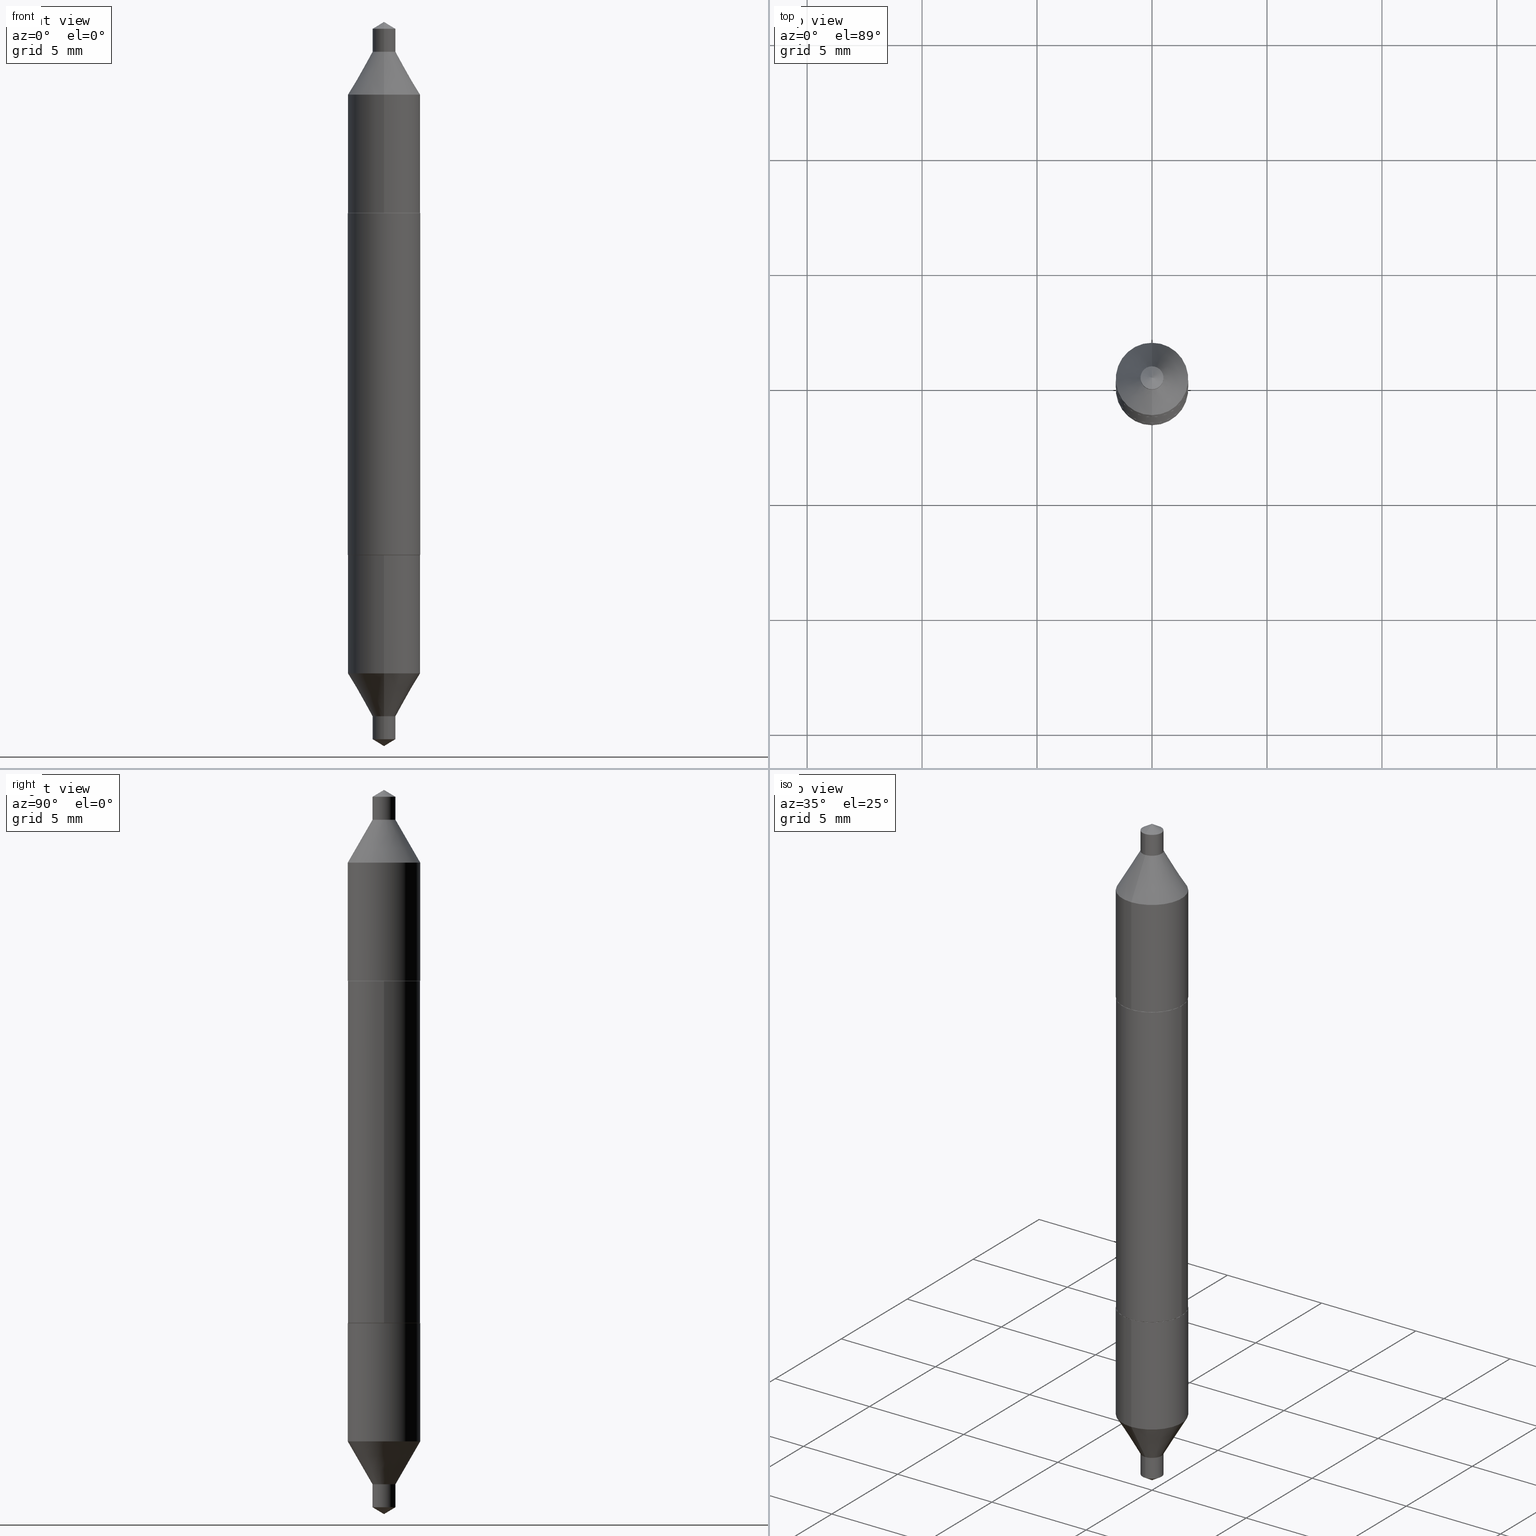
[diagram: canonical four-view strip — front | top / right | iso, engineering-drawing reading convention]
A machine part, canonical four-view strip (front | top / right | iso — engineering-drawing reading convention). The complete STEP part file that produces these views, byte-faithful:
ISO-10303-21;
HEADER;
FILE_DESCRIPTION (( 'STEP AP203' ),
    '1' );
FILE_NAME ('67009.STEP',
    '2024-04-19T15:17:42',
    ( '' ),
    ( '' ),
    'SwSTEP 2.0',
    'SolidWorks 2023',
    '' );
FILE_SCHEMA (( 'CONFIG_CONTROL_DESIGN' ));
ENDSEC;

DATA;
#1 = DIRECTION ( 'NONE',  ( 2.411471369612255613E-29, -3.540167603029431901E-15, -1.000000000000000000 ) ) ;
#2 = ORIENTED_EDGE ( 'NONE', *, *, #409, .F. ) ;
#3 = CARTESIAN_POINT ( 'NONE',  ( -7.165223602122447572E-30, 1.023004032281041323E-15, 0.2929999999999999272 ) ) ;
#4 = DIRECTION ( 'NONE',  ( 2.438088387897960049E-29, -3.491481338843145188E-15, -1.000000000000000000 ) ) ;
#5 = ORIENTED_EDGE ( 'NONE', *, *, #409, .T. ) ;
#6 = LINE ( 'NONE', #123, #179 ) ;
#7 = CONICAL_SURFACE ( 'NONE', #693, 65.52281426576880108, 1.029744258676656976 ) ;
#8 = CARTESIAN_POINT ( 'NONE',  ( -4.329436860165363363E-16, -0.06200000000000172734, -0.4955342508398351553 ) ) ;
#9 = CIRCLE ( 'NONE', #315, 0.06200000000000004119 ) ;
#10 = FACE_OUTER_BOUND ( 'NONE', #15, .T. ) ;
#11 = FACE_OUTER_BOUND ( 'NONE', #480, .T. ) ;
#12 = CARTESIAN_POINT ( 'NONE',  ( 0.06150000000000003381, -1.452456236958746978E-15, -0.2929999999999999272 ) ) ;
#13 = DIRECTION ( 'NONE',  ( -2.445468806185136597E-29, 3.491481338843145583E-15, 1.000000000000000000 ) ) ;
#14 = CARTESIAN_POINT ( 'NONE',  ( -1.375643647504331674E-16, -0.01969999999999798648, 0.5687999999999999723 ) ) ;
#15 = EDGE_LOOP ( 'NONE', ( #117, #397, #329, #143 ) ) ;
#16 = ORIENTED_EDGE ( 'NONE', *, *, #153, .F. ) ;
#17 = APPROVAL ( #300, 'UNSPECIFIED' ) ;
#18 = DATE_AND_TIME ( #82, #52 ) ;
#19 = EDGE_LOOP ( 'NONE', ( #317, #536, #641, #488 ) ) ;
#20 = CLOSED_SHELL ( 'NONE', ( #243, #601, #106, #124, #305, #469, #528, #626, #197 ) ) ;
#21 = CLOSED_SHELL ( 'NONE', ( #446, #633, #479, #393, #571, #647, #519, #130, #486 ) ) ;
#22 = AXIS2_PLACEMENT_3D ( 'NONE', #653, #121, #334 ) ;
#23 = LINE ( 'NONE', #347, #125 ) ;
#24 = VECTOR ( 'NONE', #96, 39.37007874015748854 ) ;
#25 = PERSON_AND_ORGANIZATION ( #353, #524 ) ;
#26 = DIRECTION ( 'NONE',  ( -0.7071067811865535679, 2.382254525458770323E-15, -0.7071067811865414665 ) ) ;
#27 = EDGE_CURVE ( 'NONE', #694, #193, #415, .T. ) ;
#28 = CARTESIAN_POINT ( 'NONE',  ( 4.253508758618278662E-16, 0.06200000000000175510, 0.4955342508398351553 ) ) ;
#29 = DIRECTION ( 'NONE',  ( 1.000000000000000000, 0.000000000000000000, 0.000000000000000000 ) ) ;
#30 = EDGE_CURVE ( 'NONE', #566, #97, #23, .T. ) ;
#31 = DIRECTION ( 'NONE',  ( -2.445468806185136597E-29, 3.491481338843145583E-15, 1.000000000000000000 ) ) ;
#32 = CONICAL_SURFACE ( 'NONE', #292, 0.06150000000000003381, 0.7853981633974568277 ) ;
#33 = AXIS2_PLACEMENT_3D ( 'NONE', #492, #222, #662 ) ;
#34 = DIRECTION ( 'NONE',  ( 0.000000000000000000, 0.000000000000000000, 1.000000000000000000 ) ) ;
#35 = CARTESIAN_POINT ( 'NONE',  ( -1.375643647504341041E-16, -0.01969999999999784770, 0.6081630458051571209 ) ) ;
#36 = DIRECTION ( 'NONE',  ( -2.445468806185136597E-29, 3.491481338843145583E-15, 1.000000000000000000 ) ) ;
#37 = EDGE_CURVE ( 'NONE', #193, #449, #288, .T. ) ;
#38 = DIRECTION ( 'NONE',  ( -6.982962677686268288E-15, -1.000000000000000000, 3.468864327941575282E-15 ) ) ;
#39 = AXIS2_PLACEMENT_3D ( 'NONE', #514, #199, #88 ) ;
#40 = ORIENTED_EDGE ( 'NONE', *, *, #325, .T. ) ;
#41 = DIRECTION ( 'NONE',  ( -2.479466242758017580E-29, 3.442795074656859264E-15, 1.000000000000000000 ) ) ;
#42 = EDGE_LOOP ( 'NONE', ( #184, #45, #201, #346 ) ) ;
#43 = DIRECTION ( 'NONE',  ( -6.982962677686268288E-15, -1.000000000000000000, 3.468864327941575282E-15 ) ) ;
#44 = ORIENTED_EDGE ( 'NONE', *, *, #153, .T. ) ;
#45 = ORIENTED_EDGE ( 'NONE', *, *, #211, .F. ) ;
#46 = CARTESIAN_POINT ( 'NONE',  ( 7.165223602122447572E-30, -1.023004032281041323E-15, -0.2929999999999999272 ) ) ;
#47 = EDGE_CURVE ( 'NONE', #637, #341, #437, .T. ) ;
#48 = PRODUCT_DEFINITION_SHAPE ( 'NONE', 'NONE',  #147 ) ;
#49 = CIRCLE ( 'NONE', #548, 0.06150000000000003381 ) ;
#50 = AXIS2_PLACEMENT_3D ( 'NONE', #285, #13, #175 ) ;
#51 = CARTESIAN_POINT ( 'NONE',  ( 1.400359149964906176E-29, -1.972526913871403021E-15, -0.5687999999999999723 ) ) ;
#52 = LOCAL_TIME ( 11, 17, 42.00000000000000000, #454 ) ;
#53 = FACE_OUTER_BOUND ( 'NONE', #84, .T. ) ;
#54 = EDGE_LOOP ( 'NONE', ( #527, #549, #235, #499 ) ) ;
#55 = EDGE_CURVE ( 'NONE', #289, #100, #304, .T. ) ;
#56 = FACE_OUTER_BOUND ( 'NONE', #441, .T. ) ;
#57 = LINE ( 'NONE', #387, #534 ) ;
#58 = CYLINDRICAL_SURFACE ( 'NONE', #191, 0.06200000000000001343 ) ;
#59 = AXIS2_PLACEMENT_3D ( 'NONE', #141, #467, #360 ) ;
#60 = FACE_OUTER_BOUND ( 'NONE', #142, .T. ) ;
#61 = CONICAL_SURFACE ( 'NONE', #50, 0.06150000000000003381, 0.7853981633974568277 ) ;
#62 = CYLINDRICAL_SURFACE ( 'NONE', #630, 0.06200000000000001343 ) ;
#63 = LINE ( 'NONE', #14, #238 ) ;
#64 = CARTESIAN_POINT ( 'NONE',  ( -1.381606163951305151E-29, 1.999382257196558882E-15, 0.5687999999999999723 ) ) ;
#65 = DIRECTION ( 'NONE',  ( -6.982962677686265133E-15, -1.000000000000000000, 3.466812174700844249E-15 ) ) ;
#66 = CARTESIAN_POINT ( 'NONE',  ( 7.165223602122447572E-30, -1.023004032281041323E-15, -0.2929999999999999272 ) ) ;
#67 = DIRECTION ( 'NONE',  ( -2.438088387897960049E-29, 3.491481338843145188E-15, 1.000000000000000000 ) ) ;
#68 = CARTESIAN_POINT ( 'NONE',  ( -1.204927907478374845E-29, 1.740009225608063244E-15, 0.4955342508398353774 ) ) ;
#69 = CARTESIAN_POINT ( 'NONE',  ( 9.343474420319446773E-28, -1.371960384461516369E-13, -38.75007874015748399 ) ) ;
#70 = ADVANCED_FACE ( 'NONE', ( #234 ), #259, .T. ) ;
#71 = DESIGN_CONTEXT ( 'detailed design', #231, 'design' ) ;
#72 = LINE ( 'NONE', #443, #452 ) ;
#73 = LENGTH_MEASURE_WITH_UNIT ( LENGTH_MEASURE( 0.02539999999999999897 ), #448 );
#74 = EDGE_CURVE ( 'NONE', #162, #364, #613, .T. ) ;
#75 = ORIENTED_EDGE ( 'NONE', *, *, #363, .T. ) ;
#76 = CC_DESIGN_PERSON_AND_ORGANIZATION_ASSIGNMENT ( #294, #507, ( #665 ) ) ;
#77 = CLOSED_SHELL ( 'NONE', ( #70, #270, #699, #86, #394, #228, #583, #177 ) ) ;
#78 = CARTESIAN_POINT ( 'NONE',  ( -7.165223602122447572E-30, 1.023004032281041323E-15, 0.2929999999999999272 ) ) ;
#79 = AXIS2_PLACEMENT_3D ( 'NONE', #531, #690, #419 ) ;
#80 = DIRECTION ( 'NONE',  ( -0.7071067811865535679, 7.493145998870376248E-15, 0.7071067811865414665 ) ) ;
#81 = CC_DESIGN_PERSON_AND_ORGANIZATION_ASSIGNMENT ( #459, #137, ( #147 ) ) ;
#82 = CALENDAR_DATE ( 2024, 19, 4 ) ;
#83 = CARTESIAN_POINT ( 'NONE',  ( 7.165223602122447572E-30, -1.023004032281041323E-15, -0.2929999999999999272 ) ) ;
#84 = EDGE_LOOP ( 'NONE', ( #700, #102 ) ) ;
#85 = APPROVAL ( #666, 'UNSPECIFIED' ) ;
#86 = ADVANCED_FACE ( 'NONE', ( #539 ), #276, .T. ) ;
#87 = PERSON_AND_ORGANIZATION_ROLE ( 'creator' ) ;
#88 = DIRECTION ( 'NONE',  ( -6.982962677686265922E-15, -1.000000000000000000, 3.304654831045479413E-15 ) ) ;
#89 = ORIENTED_EDGE ( 'NONE', *, *, #605, .F. ) ;
#90 = FACE_OUTER_BOUND ( 'NONE', #668, .T. ) ;
#91 = ORIENTED_EDGE ( 'NONE', *, *, #425, .F. ) ;
#92 = AXIS2_PLACEMENT_3D ( 'NONE', #350, #36, #245 ) ;
#93 = APPROVAL_PERSON_ORGANIZATION ( #94, #532, #569 ) ;
#94 = PERSON_AND_ORGANIZATION ( #353, #524 ) ;
#95 = DIRECTION ( 'NONE',  ( -6.982962677686265133E-15, -1.000000000000000000, 3.466812174700844249E-15 ) ) ;
#96 = DIRECTION ( 'NONE',  ( 3.430248998885748032E-15, 0.4999999999999914513, -0.8660254037844434816 ) ) ;
#97 = VERTEX_POINT ( 'NONE', #379 ) ;
#98 = LINE ( 'NONE', #313, #262 ) ;
#99 = AXIS2_PLACEMENT_3D ( 'NONE', #518, #461, #192 ) ;
#100 = VERTEX_POINT ( 'NONE', #547 ) ;
#101 = AXIS2_PLACEMENT_3D ( 'NONE', #485, #41, #38 ) ;
#102 = ORIENTED_EDGE ( 'NONE', *, *, #27, .T. ) ;
#103 = CARTESIAN_POINT ( 'NONE',  ( -9.608947338935145757E-28, 1.333943151537730596E-13, 38.75007874015748399 ) ) ;
#104 = ORIENTED_EDGE ( 'NONE', *, *, #545, .F. ) ;
#105 = ORIENTED_EDGE ( 'NONE', *, *, #373, .T. ) ;
#106 = ADVANCED_FACE ( 'NONE', ( #610 ), #7, .T. ) ;
#107 = FACE_OUTER_BOUND ( 'NONE', #54, .T. ) ;
#108 = ORIENTED_EDGE ( 'NONE', *, *, #284, .F. ) ;
#109 = CARTESIAN_POINT ( 'NONE',  ( 1.399769189447536068E-16, 0.01969999999999801424, -0.5687999999999999723 ) ) ;
#110 = AXIS2_PLACEMENT_3D ( 'NONE', #669, #291, #400 ) ;
#111 = VERTEX_POINT ( 'NONE', #564 ) ;
#112 = DIRECTION ( 'NONE',  ( -2.445468806185136597E-29, 3.491481338843145583E-15, 1.000000000000000000 ) ) ;
#113 = CIRCLE ( 'NONE', #504, 0.01969999999999998488 ) ;
#114 = AXIS2_PLACEMENT_3D ( 'NONE', #308, #354, #258 ) ;
#115 = VECTOR ( 'NONE', #340, 39.37007874015748143 ) ;
#116 = CARTESIAN_POINT ( 'NONE',  ( -7.165223602122447572E-30, 1.023004032281041323E-15, 0.2929999999999999272 ) ) ;
#117 = ORIENTED_EDGE ( 'NONE', *, *, #551, .F. ) ;
#118 = EDGE_CURVE ( 'NONE', #185, #423, #312, .T. ) ;
#119 = DIRECTION ( 'NONE',  ( 6.982962677686265922E-15, 1.000000000000000000, -3.442795074656859264E-15 ) ) ;
#120 = ORIENTED_EDGE ( 'NONE', *, *, #425, .T. ) ;
#121 = DIRECTION ( 'NONE',  ( -2.411471369612255613E-29, 3.540167603029431901E-15, 1.000000000000000000 ) ) ;
#122 = CARTESIAN_POINT ( 'NONE',  ( 4.405364961712740929E-16, 0.06199999999999896566, -0.2930000000000001492 ) ) ;
#123 = CARTESIAN_POINT ( 'NONE',  ( 1.517346572678262628E-29, -2.163063097100416632E-15, -0.6199999999999999956 ) ) ;
#124 = ADVANCED_FACE ( 'NONE', ( #352 ), #614, .T. ) ;
#125 = VECTOR ( 'NONE', #80, 39.37007874015748143 ) ;
#126 = DIRECTION ( 'NONE',  ( -6.982962677686265133E-15, -1.000000000000000000, 3.535573257325065938E-15 ) ) ;
#127 = CARTESIAN_POINT ( 'NONE',  ( 0.06200000000000001343, -4.329436860165486130E-16, 3.023229600993481018E-30 ) ) ;
#128 = AXIS2_PLACEMENT_3D ( 'NONE', #617, #34, #29 ) ;
#129 = CC_DESIGN_SECURITY_CLASSIFICATION ( #665, ( #252 ) ) ;
#130 = ADVANCED_FACE ( 'NONE', ( #552 ), #555, .T. ) ;
#131 = CARTESIAN_POINT ( 'NONE',  ( -7.165223602122447572E-30, 1.023004032281041323E-15, 0.2929999999999999272 ) ) ;
#132 = FACE_OUTER_BOUND ( 'NONE', #42, .T. ) ;
#133 = DIRECTION ( 'NONE',  ( 2.411471369612255613E-29, -3.540167603029431901E-15, -1.000000000000000000 ) ) ;
#134 = APPLICATION_PROTOCOL_DEFINITION ( 'international standard', 'config_control_design', 1994, #231 ) ;
#135 = CARTESIAN_POINT ( 'NONE',  ( 0.06150000000000003381, -1.452456236958746978E-15, -0.2929999999999999272 ) ) ;
#136 = VERTEX_POINT ( 'NONE', #12 ) ;
#137 = PERSON_AND_ORGANIZATION_ROLE ( 'creator' ) ;
#138 = CIRCLE ( 'NONE', #328, 0.01969999999999998141 ) ;
#139 = CARTESIAN_POINT ( 'NONE',  ( 1.497958493250930827E-29, -2.108045814092890790E-15, -0.6081630458051571209 ) ) ;
#140 =( NAMED_UNIT ( * ) PLANE_ANGLE_UNIT ( ) SI_UNIT ( $, .RADIAN. ) );
#141 = CARTESIAN_POINT ( 'NONE',  ( 7.165223602122447572E-30, -1.023004032281041323E-15, -0.2929999999999999272 ) ) ;
#142 = EDGE_LOOP ( 'NONE', ( #5, #189, #104, #108 ) ) ;
#143 = ORIENTED_EDGE ( 'NONE', *, *, #577, .F. ) ;
#144 = APPROVAL_ROLE ( '' ) ;
#145 = CARTESIAN_POINT ( 'NONE',  ( -7.165223602122447572E-30, 1.023004032281041323E-15, 0.2929999999999999272 ) ) ;
#146 = PERSON_AND_ORGANIZATION ( #353, #524 ) ;
#147 = PRODUCT_DEFINITION ( 'UNKNOWN', '', #252, #71 ) ;
#148 = DIRECTION ( 'NONE',  ( 2.411471369612255613E-29, -3.540167603029431901E-15, -1.000000000000000000 ) ) ;
#149 = AXIS2_PLACEMENT_3D ( 'NONE', #645, #587, #374 ) ;
#150 = CARTESIAN_POINT ( 'NONE',  ( -0.06200000000000001343, 4.405364961712622107E-16, -3.049739755958042274E-30 ) ) ;
#151 = CARTESIAN_POINT ( 'NONE',  ( 0.06150000000000003381, 5.935518276033357667E-16, 0.2929999999999999272 ) ) ;
#152 = FACE_OUTER_BOUND ( 'NONE', #157, .T. ) ;
#153 = EDGE_CURVE ( 'NONE', #100, #628, #72, .T. ) ;
#154 = ORIENTED_EDGE ( 'NONE', *, *, #323, .F. ) ;
#155 = DIRECTION ( 'NONE',  ( -5.985567269335927080E-15, -0.8571673007021154422, -0.5150380749100490485 ) ) ;
#156 = EDGE_CURVE ( 'NONE', #193, #694, #49, .T. ) ;
#157 = EDGE_LOOP ( 'NONE', ( #426, #604, #40, #163 ) ) ;
#158 = AXIS2_PLACEMENT_3D ( 'NONE', #538, #67, #496 ) ;
#159 = ORIENTED_EDGE ( 'NONE', *, *, #679, .F. ) ;
#160 = FACE_OUTER_BOUND ( 'NONE', #244, .T. ) ;
#161 = CARTESIAN_POINT ( 'NONE',  ( 1.351518105560852410E-16, 0.01970000000000198329, 0.5687999999999998613 ) ) ;
#162 = VERTEX_POINT ( 'NONE', #487 ) ;
#163 = ORIENTED_EDGE ( 'NONE', *, *, #380, .F. ) ;
#164 = EDGE_CURVE ( 'NONE', #162, #435, #6, .T. ) ;
#165 = PLANE ( 'NONE',  #158 ) ;
#166 = CONICAL_SURFACE ( 'NONE', #99, 0.06150000000000003381, 0.7853981633974568277 ) ;
#167 = ORIENTED_EDGE ( 'NONE', *, *, #692, .T. ) ;
#168 = VECTOR ( 'NONE', #582, 39.37007874015748143 ) ;
#169 = CARTESIAN_POINT ( 'NONE',  ( 1.351518105560847726E-16, 0.01970000000000198329, 0.5687999999999998613 ) ) ;
#170 = CARTESIAN_POINT ( 'NONE',  ( 7.165223602122447572E-30, -1.023004032281041323E-15, -0.2929999999999999272 ) ) ;
#171 = CC_DESIGN_DATE_AND_TIME_ASSIGNMENT ( #18, #297, ( #665 ) ) ;
#172 = APPLICATION_CONTEXT ( 'configuration controlled 3d designs of mechanical parts and assemblies' ) ;
#173 = FACE_OUTER_BOUND ( 'NONE', #221, .T. ) ;
#174 = CARTESIAN_POINT ( 'NONE',  ( 7.165223602122447572E-30, -1.023004032281041323E-15, -0.2929999999999999272 ) ) ;
#175 = DIRECTION ( 'NONE',  ( 1.000000000000000000, -6.982962677686267499E-15, 0.000000000000000000 ) ) ;
#176 = DIRECTION ( 'NONE',  ( -3.491481338843074191E-15, -0.4999999999999976685, -0.8660254037844400399 ) ) ;
#177 = ADVANCED_FACE ( 'NONE', ( #280 ), #32, .T. ) ;
#178 = CARTESIAN_POINT ( 'NONE',  ( -1.476529021931177274E-29, 2.138734036712539331E-15, 0.6081630458051571209 ) ) ;
#179 = VECTOR ( 'NONE', #383, 39.37007874015748143 ) ;
#180 = AXIS2_PLACEMENT_3D ( 'NONE', #51, #432, #525 ) ;
#181 = ORIENTED_EDGE ( 'NONE', *, *, #577, .T. ) ;
#182 = DIRECTION ( 'NONE',  ( 1.000000000000000000, -6.982962677686265922E-15, 0.000000000000000000 ) ) ;
#183 = PERSON_AND_ORGANIZATION ( #353, #524 ) ;
#184 = ORIENTED_EDGE ( 'NONE', *, *, #200, .F. ) ;
#185 = VERTEX_POINT ( 'NONE', #550 ) ;
#186 = DATE_TIME_ROLE ( 'creation_date' ) ;
#187 = CARTESIAN_POINT ( 'NONE',  ( -7.165223602122447572E-30, 1.023004032281041323E-15, 0.2929999999999999272 ) ) ;
#188 = COORDINATED_UNIVERSAL_TIME_OFFSET ( 5, 0, .BEHIND. ) ;
#189 = ORIENTED_EDGE ( 'NONE', *, *, #30, .T. ) ;
#190 = AXIS2_PLACEMENT_3D ( 'NONE', #396, #240, #455 ) ;
#191 = AXIS2_PLACEMENT_3D ( 'NONE', #447, #661, #322 ) ;
#192 = DIRECTION ( 'NONE',  ( 1.000000000000000000, -6.982962677686267499E-15, 0.000000000000000000 ) ) ;
#193 = VERTEX_POINT ( 'NONE', #495 ) ;
#194 = CIRCLE ( 'NONE', #348, 0.06150000000000003381 ) ;
#195 = SECURITY_CLASSIFICATION_LEVEL ( 'unclassified' ) ;
#196 = DIRECTION ( 'NONE',  ( 2.411471369612255613E-29, -3.540167603029431901E-15, -1.000000000000000000 ) ) ;
#197 = ADVANCED_FACE ( 'NONE', ( #11 ), #515, .T. ) ;
#198 = CALENDAR_DATE ( 2024, 19, 4 ) ;
#199 = DIRECTION ( 'NONE',  ( -2.411471369612255613E-29, 3.540167603029431901E-15, 1.000000000000000000 ) ) ;
#200 = EDGE_CURVE ( 'NONE', #185, #257, #57, .T. ) ;
#201 = ORIENTED_EDGE ( 'NONE', *, *, #685, .T. ) ;
#202 = DIRECTION ( 'NONE',  ( 1.000000000000000000, -6.982962677686267499E-15, 0.000000000000000000 ) ) ;
#203 = ORIENTED_EDGE ( 'NONE', *, *, #74, .F. ) ;
#204 = AXIS2_PLACEMENT_3D ( 'NONE', #554, #236, #65 ) ;
#205 = AXIS2_PLACEMENT_3D ( 'NONE', #543, #330, #395 ) ;
#206 = AXIS2_PLACEMENT_3D ( 'NONE', #46, #697, #596 ) ;
#207 = APPROVAL_PERSON_ORGANIZATION ( #411, #85, #144 ) ;
#208 = CARTESIAN_POINT ( 'NONE',  ( 7.152996258091522360E-30, -1.021258291611619820E-15, -0.2924999999999999267 ) ) ;
#209 = ORIENTED_EDGE ( 'NONE', *, *, #253, .F. ) ;
#210 = LINE ( 'NONE', #150, #506 ) ;
#211 = EDGE_CURVE ( 'NONE', #423, #185, #684, .T. ) ;
#212 = EDGE_LOOP ( 'NONE', ( #91, #213 ) ) ;
#213 = ORIENTED_EDGE ( 'NONE', *, *, #351, .F. ) ;
#214 = CARTESIAN_POINT ( 'NONE',  ( 1.218699198171901377E-29, -1.720287953521743854E-15, -0.4955342508398353774 ) ) ;
#215 = VECTOR ( 'NONE', #385, 39.37007874015748143 ) ;
#216 = AXIS2_PLACEMENT_3D ( 'NONE', #139, #520, #295 ) ;
#217 = ORIENTED_EDGE ( 'NONE', *, *, #679, .T. ) ;
#218 = AXIS2_PLACEMENT_3D ( 'NONE', #170, #378, #119 ) ;
#219 = DIRECTION ( 'NONE',  ( -2.479466242758017580E-29, 3.442795074656859264E-15, 1.000000000000000000 ) ) ;
#220 = ORIENTED_EDGE ( 'NONE', *, *, #644, .T. ) ;
#221 = EDGE_LOOP ( 'NONE', ( #366, #475, #689, #89 ) ) ;
#222 = DIRECTION ( 'NONE',  ( -2.479466242758017580E-29, 3.442795074656859264E-15, 1.000000000000000000 ) ) ;
#223 = CARTESIAN_POINT ( 'NONE',  ( 1.537443767299333479E-29, -2.134532946287252436E-15, -0.6199999999999999956 ) ) ;
#224 = AXIS2_PLACEMENT_3D ( 'NONE', #490, #4, #652 ) ;
#225 = VECTOR ( 'NONE', #155, 39.37007874015748854 ) ;
#226 = APPROVAL_PERSON_ORGANIZATION ( #146, #17, #303 ) ;
#227 = CARTESIAN_POINT ( 'NONE',  ( -1.495112249159598525E-29, 2.194903913878247203E-15, 0.6199999999999999956 ) ) ;
#228 = ADVANCED_FACE ( 'NONE', ( #10 ), #62, .T. ) ;
#229 = DIRECTION ( 'NONE',  ( 2.445468806185136597E-29, -3.491481338843145583E-15, -1.000000000000000000 ) ) ;
#230 = CYLINDRICAL_SURFACE ( 'NONE', #676, 0.01969999999999998141 ) ;
#231 = APPLICATION_CONTEXT ( 'configuration controlled 3d designs of mechanical parts and assemblies' ) ;
#232 = EDGE_CURVE ( 'NONE', #319, #674, #269, .T. ) ;
#233 = CARTESIAN_POINT ( 'NONE',  ( -4.329436860165556141E-16, -0.06199999999999897260, 0.2930000000000001492 ) ) ;
#234 = FACE_OUTER_BOUND ( 'NONE', #286, .T. ) ;
#235 = ORIENTED_EDGE ( 'NONE', *, *, #47, .T. ) ;
#236 = DIRECTION ( 'NONE',  ( -2.411471369612255613E-29, 3.540167603029431901E-15, 1.000000000000000000 ) ) ;
#237 = ORIENTED_EDGE ( 'NONE', *, *, #323, .T. ) ;
#238 = VECTOR ( 'NONE', #176, 39.37007874015748143 ) ;
#239 = ORIENTED_EDGE ( 'NONE', *, *, #416, .F. ) ;
#240 = DIRECTION ( 'NONE',  ( 2.445468806185136597E-29, -3.491481338843145583E-15, -1.000000000000000000 ) ) ;
#241 = AXIS2_PLACEMENT_3D ( 'NONE', #103, #273, #43 ) ;
#242 = EDGE_LOOP ( 'NONE', ( #660, #594, #540, #16 ) ) ;
#243 = ADVANCED_FACE ( 'NONE', ( #381 ), #281, .T. ) ;
#244 = EDGE_LOOP ( 'NONE', ( #530, #611, #584 ) ) ;
#245 = DIRECTION ( 'NONE',  ( 1.000000000000000000, -6.982962677686267499E-15, 0.000000000000000000 ) ) ;
#246 = PERSON_AND_ORGANIZATION_ROLE ( 'design_owner' ) ;
#247 = FACE_OUTER_BOUND ( 'NONE', #450, .T. ) ;
#248 =( NAMED_UNIT ( * ) SI_UNIT ( $, .STERADIAN. ) SOLID_ANGLE_UNIT ( ) );
#249 = AXIS2_PLACEMENT_3D ( 'NONE', #600, #501, #656 ) ;
#250 = LINE ( 'NONE', #135, #585 ) ;
#251 = EDGE_LOOP ( 'NONE', ( #105, #311 ) ) ;
#252 = PRODUCT_DEFINITION_FORMATION_WITH_SPECIFIED_SOURCE ( 'ANY', '', #386, .NOT_KNOWN. ) ;
#253 = EDGE_CURVE ( 'NONE', #434, #100, #63, .T. ) ;
#254 = APPROVAL_DATE_TIME ( #407, #532 ) ;
#255 = FACE_OUTER_BOUND ( 'NONE', #588, .T. ) ;
#256 = EDGE_CURVE ( 'NONE', #257, #434, #639, .T. ) ;
#257 = VERTEX_POINT ( 'NONE', #169 ) ;
#258 = DIRECTION ( 'NONE',  ( -6.982962677686265922E-15, -1.000000000000000000, 3.304654831045479808E-15 ) ) ;
#259 = CONICAL_SURFACE ( 'NONE', #190, 0.06150000000000003381, 0.7853981633974568277 ) ;
#260 = CARTESIAN_POINT ( 'NONE',  ( 7.152996258091522360E-30, -1.021258291611619820E-15, -0.2924999999999999267 ) ) ;
#261 = AXIS2_PLACEMENT_3D ( 'NONE', #187, #414, #345 ) ;
#262 = VECTOR ( 'NONE', #264, 39.37007874015748143 ) ;
#263 = ORIENTED_EDGE ( 'NONE', *, *, #460, .F. ) ;
#264 = DIRECTION ( 'NONE',  ( -2.479466242758017580E-29, 3.442795074656859264E-15, 1.000000000000000000 ) ) ;
#265 = ORIENTED_EDGE ( 'NONE', *, *, #27, .F. ) ;
#266 = CARTESIAN_POINT ( 'NONE',  ( 1.400359149964906176E-29, -1.972526913871403021E-15, -0.5687999999999999723 ) ) ;
#267 = VERTEX_POINT ( 'NONE', #542 ) ;
#268 = FACE_OUTER_BOUND ( 'NONE', #19, .T. ) ;
#269 = LINE ( 'NONE', #474, #695 ) ;
#270 = ADVANCED_FACE ( 'NONE', ( #173 ), #58, .T. ) ;
#271 = CIRCLE ( 'NONE', #92, 0.06200000000000004119 ) ;
#272 = CC_DESIGN_PERSON_AND_ORGANIZATION_ASSIGNMENT ( #572, #246, ( #386 ) ) ;
#273 = DIRECTION ( 'NONE',  ( -2.479466242758017580E-29, 3.442795074656859264E-15, 1.000000000000000000 ) ) ;
#274 = EDGE_LOOP ( 'NONE', ( #483, #277, #512, #209 ) ) ;
#275 = DIRECTION ( 'NONE',  ( -6.982962677686265133E-15, -1.000000000000000000, 3.466812174700845037E-15 ) ) ;
#276 = PLANE ( 'NONE',  #224 ) ;
#277 = ORIENTED_EDGE ( 'NONE', *, *, #460, .T. ) ;
#278 = LINE ( 'NONE', #127, #472 ) ;
#279 = DIMENSIONAL_EXPONENTS ( 1.000000000000000000, 0.000000000000000000, 0.000000000000000000, 0.000000000000000000, 0.000000000000000000, 0.000000000000000000, 0.000000000000000000 ) ;
#280 = FACE_OUTER_BOUND ( 'NONE', #327, .T. ) ;
#281 = CONICAL_SURFACE ( 'NONE', #249, 0.01969999999999998488, 0.5235987755982925984 ) ;
#282 = CIRCLE ( 'NONE', #406, 0.06200000000000004119 ) ;
#283 = PRODUCT_RELATED_PRODUCT_CATEGORY ( 'detail', '', ( #386 ) ) ;
#284 = EDGE_CURVE ( 'NONE', #136, #606, #250, .T. ) ;
#285 = CARTESIAN_POINT ( 'NONE',  ( 7.165223602122447572E-30, -1.023004032281041323E-15, -0.2929999999999999272 ) ) ;
#286 = EDGE_LOOP ( 'NONE', ( #265, #643, #181, #591 ) ) ;
#287 = LINE ( 'NONE', #333, #369 ) ;
#288 = LINE ( 'NONE', #151, #215 ) ;
#289 = VERTEX_POINT ( 'NONE', #28 ) ;
#290 = CYLINDRICAL_SURFACE ( 'NONE', #33, 0.01969999999999998141 ) ;
#291 = DIRECTION ( 'NONE',  ( -2.445468806185136597E-29, 3.491481338843145583E-15, 1.000000000000000000 ) ) ;
#292 = AXIS2_PLACEMENT_3D ( 'NONE', #654, #229, #332 ) ;
#293 = CONICAL_SURFACE ( 'NONE', #664, 0.01969999999999998488, 0.5235987755982925984 ) ;
#294 = PERSON_AND_ORGANIZATION ( #353, #524 ) ;
#295 = DIRECTION ( 'NONE',  ( -6.982962677686265133E-15, -1.000000000000000000, 3.466812174700845037E-15 ) ) ;
#296 = DIRECTION ( 'NONE',  ( -6.982962677686265133E-15, -1.000000000000000000, 3.466812174700845037E-15 ) ) ;
#297 = DATE_TIME_ROLE ( 'classification_date' ) ;
#298 = DIRECTION ( 'NONE',  ( -2.479466242758017580E-29, 3.442795074656859264E-15, 1.000000000000000000 ) ) ;
#299 = DIRECTION ( 'NONE',  ( -6.982962677686265133E-15, -1.000000000000000000, 3.466812174700845037E-15 ) ) ;
#300 = APPROVAL_STATUS ( 'not_yet_approved' ) ;
#301 = CARTESIAN_POINT ( 'NONE',  ( 1.218699198171901377E-29, -1.720287953521743854E-15, -0.4955342508398353774 ) ) ;
#302 = ORIENTED_EDGE ( 'NONE', *, *, #200, .T. ) ;
#303 = APPROVAL_ROLE ( '' ) ;
#304 = CIRCLE ( 'NONE', #503, 0.06200000000000000649 ) ;
#305 = ADVANCED_FACE ( 'NONE', ( #255 ), #470, .T. ) ;
#306 = DIRECTION ( 'NONE',  ( -6.982962677686265922E-15, -1.000000000000000000, 3.304654831045479808E-15 ) ) ;
#307 = CONICAL_SURFACE ( 'NONE', #241, 65.52281426576878687, 1.029744258676656976 ) ;
#308 = CARTESIAN_POINT ( 'NONE',  ( 7.165223602122447572E-30, -1.023004032281041323E-15, -0.2929999999999999272 ) ) ;
#309 = DIRECTION ( 'NONE',  ( -2.479466242758017580E-29, 3.442795074656859264E-15, 1.000000000000000000 ) ) ;
#310 = EDGE_CURVE ( 'NONE', #674, #341, #620, .T. ) ;
#311 = ORIENTED_EDGE ( 'NONE', *, *, #310, .T. ) ;
#312 = CIRCLE ( 'NONE', #404, 0.01969999999999998141 ) ;
#313 = CARTESIAN_POINT ( 'NONE',  ( 1.399769189447467290E-16, 0.01969999999999895446, -0.2929999999999999827 ) ) ;
#314 = AXIS2_PLACEMENT_3D ( 'NONE', #64, #339, #544 ) ;
#315 = AXIS2_PLACEMENT_3D ( 'NONE', #208, #521, #202 ) ;
#316 = ORIENTED_EDGE ( 'NONE', *, *, #118, .T. ) ;
#317 = ORIENTED_EDGE ( 'NONE', *, *, #468, .T. ) ;
#318 = FACE_OUTER_BOUND ( 'NONE', #212, .T. ) ;
#319 = VERTEX_POINT ( 'NONE', #578 ) ;
#320 = ORIENTED_EDGE ( 'NONE', *, *, #342, .F. ) ;
#321 = CARTESIAN_POINT ( 'NONE',  ( 1.399769189447545683E-16, 0.01969999999999801424, -0.5687999999999999723 ) ) ;
#322 = DIRECTION ( 'NONE',  ( 1.000000000000000000, -6.982962677686266711E-15, 4.876176775795935793E-29 ) ) ;
#323 = EDGE_CURVE ( 'NONE', #435, #364, #574, .T. ) ;
#324 = DIRECTION ( 'NONE',  ( -6.982962677686265922E-15, -1.000000000000000000, 3.304654831045479413E-15 ) ) ;
#325 = EDGE_CURVE ( 'NONE', #111, #637, #458, .T. ) ;
#326 = CIRCLE ( 'NONE', #39, 0.06200000000000000649 ) ;
#327 = EDGE_LOOP ( 'NONE', ( #682, #484, #567, #75 ) ) ;
#328 = AXIS2_PLACEMENT_3D ( 'NONE', #636, #219, #529 ) ;
#329 = ORIENTED_EDGE ( 'NONE', *, *, #605, .T. ) ;
#330 = DIRECTION ( 'NONE',  ( -2.445468806185136597E-29, 3.491481338843145583E-15, 1.000000000000000000 ) ) ;
#331 = CARTESIAN_POINT ( 'NONE',  ( -0.06200000000000004119, 4.405364961712621121E-16, 0.2924999999999999267 ) ) ;
#332 = DIRECTION ( 'NONE',  ( 1.000000000000000000, -6.982962677686265922E-15, 0.000000000000000000 ) ) ;
#333 = CARTESIAN_POINT ( 'NONE',  ( -1.375643647504264620E-16, -0.01969999999999895446, 0.2929999999999999827 ) ) ;
#334 = DIRECTION ( 'NONE',  ( -6.982962677686265133E-15, -1.000000000000000000, 3.466812174700845037E-15 ) ) ;
#335 = AXIS2_PLACEMENT_3D ( 'NONE', #66, #568, #299 ) ;
#336 = AXIS2_PLACEMENT_3D ( 'NONE', #533, #421, #365 ) ;
#337 = DIRECTION ( 'NONE',  ( 2.411471369612255613E-29, -3.540167603029431901E-15, -1.000000000000000000 ) ) ;
#338 = ORIENTED_EDGE ( 'NONE', *, *, #510, .T. ) ;
#339 = DIRECTION ( 'NONE',  ( 2.411471369612255613E-29, -3.540167603029431901E-15, -1.000000000000000000 ) ) ;
#340 = DIRECTION ( 'NONE',  ( -2.479466242758017580E-29, 3.442795074656859264E-15, 1.000000000000000000 ) ) ;
#341 = VERTEX_POINT ( 'NONE', #412 ) ;
#342 = EDGE_CURVE ( 'NONE', #100, #289, #326, .T. ) ;
#343 = DIRECTION ( 'NONE',  ( -6.982962677686265922E-15, -1.000000000000000000, 3.304654831045479808E-15 ) ) ;
#344 = APPLICATION_PROTOCOL_DEFINITION ( 'international standard', 'config_control_design', 1994, #172 ) ;
#345 = DIRECTION ( 'NONE',  ( -6.982962677686265922E-15, -1.000000000000000000, 3.304654831045479808E-15 ) ) ;
#346 = ORIENTED_EDGE ( 'NONE', *, *, #370, .T. ) ;
#347 = CARTESIAN_POINT ( 'NONE',  ( -0.06150000000000003381, -5.860202497885795180E-16, -0.2929999999999999272 ) ) ;
#348 = AXIS2_PLACEMENT_3D ( 'NONE', #174, #384, #602 ) ;
#349 = DATE_AND_TIME ( #624, #535 ) ;
#350 = CARTESIAN_POINT ( 'NONE',  ( -7.152996258091522360E-30, 1.021258291611619820E-15, 0.2924999999999999267 ) ) ;
#351 = EDGE_CURVE ( 'NONE', #267, #628, #482, .T. ) ;
#352 = FACE_OUTER_BOUND ( 'NONE', #242, .T. ) ;
#353 = PERSON ( 'UNSPECIFIED', 'UNSPECIFIED', 'UNSPECIFIED', ('UNSPECIFIED'), ('UNSPECIFIED'), ('UNSPECIFIED') ) ;
#354 = DIRECTION ( 'NONE',  ( -2.479466242758017580E-29, 3.442795074656859264E-15, 1.000000000000000000 ) ) ;
#355 = EDGE_CURVE ( 'NONE', #694, #622, #673, .T. ) ;
#356 = DIRECTION ( 'NONE',  ( -6.982962677686265922E-15, -1.000000000000000000, 3.304654831045479413E-15 ) ) ;
#357 = APPROVAL_DATE_TIME ( #680, #17 ) ;
#358 = ORIENTED_EDGE ( 'NONE', *, *, #373, .F. ) ;
#359 = CIRCLE ( 'NONE', #417, 0.06200000000000000649 ) ;
#360 = DIRECTION ( 'NONE',  ( -6.982962677686265922E-15, -1.000000000000000000, 3.304654831045479808E-15 ) ) ;
#361 = CC_DESIGN_APPROVAL ( #532, ( #252 ) ) ;
#362 = FACE_OUTER_BOUND ( 'NONE', #457, .T. ) ;
#363 = EDGE_CURVE ( 'NONE', #449, #622, #271, .T. ) ;
#364 = VERTEX_POINT ( 'NONE', #671 ) ;
#365 = DIRECTION ( 'NONE',  ( -6.982962677686265133E-15, -1.000000000000000000, 3.535573257325065938E-15 ) ) ;
#366 = ORIENTED_EDGE ( 'NONE', *, *, #545, .T. ) ;
#367 = LINE ( 'NONE', #424, #225 ) ;
#368 = AXIS2_PLACEMENT_3D ( 'NONE', #657, #133, #343 ) ;
#369 = VECTOR ( 'NONE', #612, 39.37007874015748143 ) ;
#370 = EDGE_CURVE ( 'NONE', #434, #257, #439, .T. ) ;
#371 = DIRECTION ( 'NONE',  ( -2.445468806185136597E-29, 3.491481338843145583E-15, 1.000000000000000000 ) ) ;
#372 = ORIENTED_EDGE ( 'NONE', *, *, #561, .F. ) ;
#373 = EDGE_CURVE ( 'NONE', #341, #674, #650, .T. ) ;
#374 = DIRECTION ( 'NONE',  ( 6.982962677686265922E-15, 1.000000000000000000, -3.540167603029431901E-15 ) ) ;
#375 = FACE_OUTER_BOUND ( 'NONE', #559, .T. ) ;
#376 = DIRECTION ( 'NONE',  ( 2.411471369612255613E-29, -3.540167603029431901E-15, -1.000000000000000000 ) ) ;
#377 = CONICAL_SURFACE ( 'NONE', #336, 65.52281426576880108, 1.029744258676656976 ) ;
#378 = DIRECTION ( 'NONE',  ( 2.479466242758017300E-29, -3.442795074656859264E-15, -1.000000000000000000 ) ) ;
#379 = CARTESIAN_POINT ( 'NONE',  ( -0.06200000000000004119, -5.807217954403574117E-16, -0.2924999999999999267 ) ) ;
#380 = EDGE_CURVE ( 'NONE', #319, #637, #359, .T. ) ;
#381 = FACE_OUTER_BOUND ( 'NONE', #274, .T. ) ;
#382 = EDGE_CURVE ( 'NONE', #541, #111, #113, .T. ) ;
#383 = DIRECTION ( 'NONE',  ( -5.985567269335953112E-15, -0.8571673007021117785, 0.5150380749100550437 ) ) ;
#384 = DIRECTION ( 'NONE',  ( -2.445468806185136597E-29, 3.491481338843145583E-15, 1.000000000000000000 ) ) ;
#385 = DIRECTION ( 'NONE',  ( 0.7071067811865535679, -7.406550393246826402E-15, -0.7071067811865414665 ) ) ;
#386 = PRODUCT ( '67009', '67009', '', ( #466 ) ) ;
#387 = CARTESIAN_POINT ( 'NONE',  ( 1.351518105560918724E-16, 0.01970000000000100490, 0.2929999999999998717 ) ) ;
#388 = ORIENTED_EDGE ( 'NONE', *, *, #561, .T. ) ;
#389 = DIRECTION ( 'NONE',  ( -6.982962677686265133E-15, -1.000000000000000000, 3.466812174700845037E-15 ) ) ;
#390 = DIRECTION ( 'NONE',  ( -2.479466242758017580E-29, 3.442795074656859264E-15, 1.000000000000000000 ) ) ;
#391 = VECTOR ( 'NONE', #399, 39.37007874015748854 ) ;
#392 = LOCAL_TIME ( 11, 17, 42.00000000000000000, #517 ) ;
#393 = ADVANCED_FACE ( 'NONE', ( #90 ), #618, .T. ) ;
#394 = ADVANCED_FACE ( 'NONE', ( #247 ), #166, .T. ) ;
#395 = DIRECTION ( 'NONE',  ( 1.000000000000000000, -6.982962677686267499E-15, 0.000000000000000000 ) ) ;
#396 = CARTESIAN_POINT ( 'NONE',  ( -7.165223602122447572E-30, 1.023004032281041323E-15, 0.2929999999999999272 ) ) ;
#397 = ORIENTED_EDGE ( 'NONE', *, *, #500, .T. ) ;
#398 = COORDINATED_UNIVERSAL_TIME_OFFSET ( 5, 0, .BEHIND. ) ;
#399 = DIRECTION ( 'NONE',  ( -3.491481338843116000E-15, -0.4999999999999914513, 0.8660254037844434816 ) ) ;
#400 = DIRECTION ( 'NONE',  ( 1.000000000000000000, -6.982962677686265922E-15, 0.000000000000000000 ) ) ;
#401 = DIRECTION ( 'NONE',  ( -2.411471369612255613E-29, 3.540167603029431901E-15, 1.000000000000000000 ) ) ;
#402 = PERSON_AND_ORGANIZATION_ROLE ( 'design_supplier' ) ;
#403 = DIRECTION ( 'NONE',  ( -6.982962677686265133E-15, -1.000000000000000000, 3.466812174700844249E-15 ) ) ;
#404 = AXIS2_PLACEMENT_3D ( 'NONE', #178, #401, #296 ) ;
#405 = AXIS2_PLACEMENT_3D ( 'NONE', #408, #31, #623 ) ;
#406 = AXIS2_PLACEMENT_3D ( 'NONE', #260, #371, #631 ) ;
#407 = DATE_AND_TIME ( #670, #575 ) ;
#408 = CARTESIAN_POINT ( 'NONE',  ( 7.165223602122447572E-30, -1.023004032281041323E-15, -0.2929999999999999272 ) ) ;
#409 = EDGE_CURVE ( 'NONE', #136, #566, #675, .T. ) ;
#410 = MANIFOLD_SOLID_BREP ( 'Body-Move/Copy2[3]', #77 ) ;
#411 = PERSON_AND_ORGANIZATION ( #353, #524 ) ;
#412 = CARTESIAN_POINT ( 'NONE',  ( -4.329436860165412667E-16, -0.06200000000000101957, -0.2929999999999997051 ) ) ;
#413 = CC_DESIGN_PERSON_AND_ORGANIZATION_ASSIGNMENT ( #183, #87, ( #252 ) ) ;
#414 = DIRECTION ( 'NONE',  ( -2.411471369612255613E-29, 3.540167603029431901E-15, 1.000000000000000000 ) ) ;
#415 = CIRCLE ( 'NONE', #110, 0.06150000000000003381 ) ;
#416 = EDGE_CURVE ( 'NONE', #289, #267, #625, .T. ) ;
#417 = AXIS2_PLACEMENT_3D ( 'NONE', #301, #683, #356 ) ;
#418 = AXIS2_PLACEMENT_3D ( 'NONE', #78, #148, #570 ) ;
#419 = DIRECTION ( 'NONE',  ( -6.982962677686265133E-15, -1.000000000000000000, 3.466812174700844249E-15 ) ) ;
#420 = DIRECTION ( 'NONE',  ( -2.479466242758017580E-29, 3.442795074656859264E-15, 1.000000000000000000 ) ) ;
#421 = DIRECTION ( 'NONE',  ( 2.411471369612255613E-29, -3.540167603029431901E-15, -1.000000000000000000 ) ) ;
#422 = CC_DESIGN_DATE_AND_TIME_ASSIGNMENT ( #576, #186, ( #147 ) ) ;
#423 = VERTEX_POINT ( 'NONE', #35 ) ;
#424 = CARTESIAN_POINT ( 'NONE',  ( -1.515034746991306573E-29, 2.166373763065083796E-15, 0.6199999999999999956 ) ) ;
#425 = EDGE_CURVE ( 'NONE', #628, #267, #493, .T. ) ;
#426 = ORIENTED_EDGE ( 'NONE', *, *, #476, .F. ) ;
#427 = CARTESIAN_POINT ( 'NONE',  ( -1.375643647504331674E-16, -0.01969999999999798648, 0.5687999999999999723 ) ) ;
#428 = VECTOR ( 'NONE', #26, 39.37007874015748143 ) ;
#429 = DIRECTION ( 'NONE',  ( 1.000000000000000000, -6.982962677686266711E-15, 4.876176775795935793E-29 ) ) ;
#430 = EDGE_CURVE ( 'NONE', #672, #423, #367, .T. ) ;
#431 = ORIENTED_EDGE ( 'NONE', *, *, #500, .F. ) ;
#432 = DIRECTION ( 'NONE',  ( -2.479466242758017580E-29, 3.442795074656859264E-15, 1.000000000000000000 ) ) ;
#433 = ORIENTED_EDGE ( 'NONE', *, *, #451, .T. ) ;
#434 = VERTEX_POINT ( 'NONE', #427 ) ;
#435 = VERTEX_POINT ( 'NONE', #580 ) ;
#436 = DIRECTION ( 'NONE',  ( 2.411471369612255613E-29, -3.540167603029431901E-15, -1.000000000000000000 ) ) ;
#437 = LINE ( 'NONE', #599, #609 ) ;
#438 = ORIENTED_EDGE ( 'NONE', *, *, #164, .F. ) ;
#439 = CIRCLE ( 'NONE', #663, 0.01969999999999998488 ) ;
#440 = VECTOR ( 'NONE', #598, 39.37007874015748143 ) ;
#441 = EDGE_LOOP ( 'NONE', ( #237, #388, #462, #537 ) ) ;
#442 = CYLINDRICAL_SURFACE ( 'NONE', #516, 0.01969999999999998141 ) ;
#443 = CARTESIAN_POINT ( 'NONE',  ( -4.329436860165556141E-16, -0.06199999999999897260, 0.2930000000000001492 ) ) ;
#444 = DIRECTION ( 'NONE',  ( -2.445468806185136877E-29, 3.491481338843145188E-15, 1.000000000000000000 ) ) ;
#445 = EDGE_LOOP ( 'NONE', ( #372, #433, #167, #592 ) ) ;
#446 = ADVANCED_FACE ( 'NONE', ( #268 ), #523, .T. ) ;
#447 = CARTESIAN_POINT ( 'NONE',  ( 0.000000000000000000, 0.000000000000000000, 0.000000000000000000 ) ) ;
#448 =( LENGTH_UNIT ( ) NAMED_UNIT ( * ) SI_UNIT ( $, .METRE. ) );
#449 = VERTEX_POINT ( 'NONE', #478 ) ;
#450 = EDGE_LOOP ( 'NONE', ( #581, #217, #589, #431 ) ) ;
#451 = EDGE_CURVE ( 'NONE', #364, #435, #138, .T. ) ;
#452 = VECTOR ( 'NONE', #498, 39.37007874015748143 ) ;
#453 = CIRCLE ( 'NONE', #463, 0.06200000000000000649 ) ;
#454 = COORDINATED_UNIVERSAL_TIME_OFFSET ( 5, 0, .BEHIND. ) ;
#455 = DIRECTION ( 'NONE',  ( 1.000000000000000000, -6.982962677686265922E-15, 0.000000000000000000 ) ) ;
#456 = CALENDAR_DATE ( 2024, 19, 4 ) ;
#457 = EDGE_LOOP ( 'NONE', ( #438, #698, #154 ) ) ;
#458 = LINE ( 'NONE', #681, #391 ) ;
#459 = PERSON_AND_ORGANIZATION ( #353, #524 ) ;
#460 = EDGE_CURVE ( 'NONE', #257, #289, #632, .T. ) ;
#461 = DIRECTION ( 'NONE',  ( -2.445468806185136597E-29, 3.491481338843145583E-15, 1.000000000000000000 ) ) ;
#462 = ORIENTED_EDGE ( 'NONE', *, *, #468, .F. ) ;
#463 = AXIS2_PLACEMENT_3D ( 'NONE', #214, #309, #324 ) ;
#464 = CARTESIAN_POINT ( 'NONE',  ( 4.253508758618277676E-16, 0.06200000000000101957, 0.2929999999999997051 ) ) ;
#465 = EDGE_LOOP ( 'NONE', ( #203, #649, #634 ) ) ;
#466 = MECHANICAL_CONTEXT ( 'NONE', #172, 'mechanical' ) ;
#467 = DIRECTION ( 'NONE',  ( -2.479466242758017580E-29, 3.442795074656859264E-15, 1.000000000000000000 ) ) ;
#468 = EDGE_CURVE ( 'NONE', #111, #541, #586, .T. ) ;
#469 = ADVANCED_FACE ( 'NONE', ( #318 ), #686, .F. ) ;
#470 = CYLINDRICAL_SURFACE ( 'NONE', #418, 0.06199999999999999956 ) ;
#471 = VECTOR ( 'NONE', #196, 39.37007874015748143 ) ;
#472 = VECTOR ( 'NONE', #444, 39.37007874015748143 ) ;
#473 = DIRECTION ( 'NONE',  ( -2.445468806185136877E-29, 3.491481338843145188E-15, 1.000000000000000000 ) ) ;
#474 = CARTESIAN_POINT ( 'NONE',  ( 4.405364961712692118E-16, 0.06199999999999897260, -0.2930000000000001492 ) ) ;
#475 = ORIENTED_EDGE ( 'NONE', *, *, #551, .T. ) ;
#476 = EDGE_CURVE ( 'NONE', #541, #319, #593, .T. ) ;
#477 = CYLINDRICAL_SURFACE ( 'NONE', #206, 0.06199999999999999956 ) ;
#478 = CARTESIAN_POINT ( 'NONE',  ( 0.06200000000000004119, 5.883146055950708615E-16, 0.2924999999999999267 ) ) ;
#479 = ADVANCED_FACE ( 'NONE', ( #362 ), #307, .T. ) ;
#480 = EDGE_LOOP ( 'NONE', ( #263, #642, #497, #687 ) ) ;
#481 = FACE_OUTER_BOUND ( 'NONE', #465, .T. ) ;
#482 = CIRCLE ( 'NONE', #261, 0.06199999999999999956 ) ;
#483 = ORIENTED_EDGE ( 'NONE', *, *, #256, .F. ) ;
#484 = ORIENTED_EDGE ( 'NONE', *, *, #156, .F. ) ;
#485 = CARTESIAN_POINT ( 'NONE',  ( -9.608947338935145757E-28, 1.333943151537730596E-13, 38.75007874015748399 ) ) ;
#486 = ADVANCED_FACE ( 'NONE', ( #152 ), #293, .T. ) ;
#487 = CARTESIAN_POINT ( 'NONE',  ( 1.537269070509970676E-29, -2.134532946287252436E-15, -0.6199999999999999956 ) ) ;
#488 = ORIENTED_EDGE ( 'NONE', *, *, #325, .F. ) ;
#489 = CARTESIAN_POINT ( 'NONE',  ( 0.06200000000000004119, -1.454201977628168679E-15, -0.2924999999999999267 ) ) ;
#490 = CARTESIAN_POINT ( 'NONE',  ( 7.165223602122447572E-30, -1.023004032281041323E-15, -0.2929999999999999272 ) ) ;
#491 = ORIENTED_EDGE ( 'NONE', *, *, #118, .F. ) ;
#492 = CARTESIAN_POINT ( 'NONE',  ( 7.165223602122447572E-30, -1.023004032281041323E-15, -0.2929999999999999272 ) ) ;
#493 = CIRCLE ( 'NONE', #562, 0.06199999999999999956 ) ;
#494 = LOCAL_TIME ( 11, 17, 42.00000000000000000, #188 ) ;
#495 = CARTESIAN_POINT ( 'NONE',  ( 0.06150000000000003381, 5.935518276033357667E-16, 0.2929999999999999272 ) ) ;
#496 = DIRECTION ( 'NONE',  ( -1.000000000000000000, 6.982962677686265922E-15, -4.876176775795935793E-29 ) ) ;
#497 = ORIENTED_EDGE ( 'NONE', *, *, #253, .T. ) ;
#498 = DIRECTION ( 'NONE',  ( 2.411471369612255613E-29, -3.540167603029431901E-15, -1.000000000000000000 ) ) ;
#499 = ORIENTED_EDGE ( 'NONE', *, *, #310, .F. ) ;
#500 = EDGE_CURVE ( 'NONE', #97, #606, #9, .T. ) ;
#501 = DIRECTION ( 'NONE',  ( 2.411471369612255613E-29, -3.540167603029431901E-15, -1.000000000000000000 ) ) ;
#502 = APPROVAL_STATUS ( 'not_yet_approved' ) ;
#503 = AXIS2_PLACEMENT_3D ( 'NONE', #68, #667, #608 ) ;
#504 = AXIS2_PLACEMENT_3D ( 'NONE', #616, #565, #403 ) ;
#505 = CIRCLE ( 'NONE', #205, 0.06200000000000004119 ) ;
#506 = VECTOR ( 'NONE', #473, 39.37007874015748143 ) ;
#507 = PERSON_AND_ORGANIZATION_ROLE ( 'classification_officer' ) ;
#508 = CARTESIAN_POINT ( 'NONE',  ( -0.06150000000000003381, 1.444924659143990631E-15, 0.2929999999999999272 ) ) ;
#509 = ORIENTED_EDGE ( 'NONE', *, *, #256, .T. ) ;
#510 = EDGE_CURVE ( 'NONE', #637, #319, #453, .T. ) ;
#511 = DIRECTION ( 'NONE',  ( -6.982962677686265922E-15, -1.000000000000000000, 3.304654831045479808E-15 ) ) ;
#512 = ORIENTED_EDGE ( 'NONE', *, *, #55, .T. ) ;
#513 = ORIENTED_EDGE ( 'NONE', *, *, #47, .F. ) ;
#514 = CARTESIAN_POINT ( 'NONE',  ( -1.204927907478374845E-29, 1.740009225608063244E-15, 0.4955342508398353774 ) ) ;
#515 = CONICAL_SURFACE ( 'NONE', #314, 0.01969999999999998488, 0.5235987755982925984 ) ;
#516 = AXIS2_PLACEMENT_3D ( 'NONE', #116, #436, #275 ) ;
#517 = COORDINATED_UNIVERSAL_TIME_OFFSET ( 5, 0, .BEHIND. ) ;
#518 = CARTESIAN_POINT ( 'NONE',  ( 7.165223602122447572E-30, -1.023004032281041323E-15, -0.2929999999999999272 ) ) ;
#519 = ADVANCED_FACE ( 'NONE', ( #481 ), #563, .T. ) ;
#520 = DIRECTION ( 'NONE',  ( -2.479466242758017580E-29, 3.442795074656859264E-15, 1.000000000000000000 ) ) ;
#521 = DIRECTION ( 'NONE',  ( -2.445468806185136597E-29, 3.491481338843145583E-15, 1.000000000000000000 ) ) ;
#522 = ORIENTED_EDGE ( 'NONE', *, *, #232, .T. ) ;
#523 = CONICAL_SURFACE ( 'NONE', #79, 0.01969999999999998488, 0.5235987755982925984 ) ;
#524 = ORGANIZATION ( 'UNSPECIFIED', 'UNSPECIFIED', '' ) ;
#525 = DIRECTION ( 'NONE',  ( -6.982962677686265133E-15, -1.000000000000000000, 3.466812174700844249E-15 ) ) ;
#526 = CC_DESIGN_APPROVAL ( #85, ( #665 ) ) ;
#527 = ORIENTED_EDGE ( 'NONE', *, *, #232, .F. ) ;
#528 = ADVANCED_FACE ( 'NONE', ( #160 ), #377, .T. ) ;
#529 = DIRECTION ( 'NONE',  ( -6.982962677686265133E-15, -1.000000000000000000, 3.466812174700845037E-15 ) ) ;
#530 = ORIENTED_EDGE ( 'NONE', *, *, #644, .F. ) ;
#531 = CARTESIAN_POINT ( 'NONE',  ( 1.400359149964906176E-29, -1.972526913871403021E-15, -0.5687999999999999723 ) ) ;
#532 = APPROVAL ( #502, 'UNSPECIFIED' ) ;
#533 = CARTESIAN_POINT ( 'NONE',  ( 9.343474420319446773E-28, -1.371960384461516369E-13, -38.75007874015748399 ) ) ;
#534 = VECTOR ( 'NONE', #376, 39.37007874015748143 ) ;
#535 = LOCAL_TIME ( 11, 17, 42.00000000000000000, #398 ) ;
#536 = ORIENTED_EDGE ( 'NONE', *, *, #476, .T. ) ;
#537 = ORIENTED_EDGE ( 'NONE', *, *, #692, .F. ) ;
#538 = CARTESIAN_POINT ( 'NONE',  ( -7.165223602122447572E-30, 1.023004032281041323E-15, 0.2929999999999999272 ) ) ;
#539 = FACE_OUTER_BOUND ( 'NONE', #646, .T. ) ;
#540 = ORIENTED_EDGE ( 'NONE', *, *, #351, .T. ) ;
#541 = VERTEX_POINT ( 'NONE', #321 ) ;
#542 = CARTESIAN_POINT ( 'NONE',  ( 4.253508758618253517E-16, 0.06200000000000101957, 0.2929999999999997051 ) ) ;
#543 = CARTESIAN_POINT ( 'NONE',  ( -7.152996258091522360E-30, 1.021258291611619820E-15, 0.2924999999999999267 ) ) ;
#544 = DIRECTION ( 'NONE',  ( -6.982962677686265133E-15, -1.000000000000000000, 3.466812174700844249E-15 ) ) ;
#545 = EDGE_CURVE ( 'NONE', #606, #97, #282, .T. ) ;
#546 = CARTESIAN_POINT ( 'NONE',  ( -1.375643647504121393E-16, -0.01970000000000100490, -0.2929999999999998717 ) ) ;
#547 = CARTESIAN_POINT ( 'NONE',  ( -4.329436860165605938E-16, -0.06199999999999826483, 0.4955342508398355439 ) ) ;
#548 = AXIS2_PLACEMENT_3D ( 'NONE', #131, #112, #182 ) ;
#549 = ORIENTED_EDGE ( 'NONE', *, *, #380, .T. ) ;
#550 = CARTESIAN_POINT ( 'NONE',  ( 1.351518105560842549E-16, 0.01970000000000212206, 0.6081630458051570098 ) ) ;
#551 = EDGE_CURVE ( 'NONE', #97, #622, #210, .T. ) ;
#552 = FACE_OUTER_BOUND ( 'NONE', #445, .T. ) ;
#553 = CARTESIAN_POINT ( 'NONE',  ( -0.06150000000000003381, 1.445766913308722832E-15, 0.2929999999999999272 ) ) ;
#554 = CARTESIAN_POINT ( 'NONE',  ( -1.381606163951305151E-29, 1.999382257196558882E-15, 0.5687999999999999723 ) ) ;
#555 = CYLINDRICAL_SURFACE ( 'NONE', #335, 0.01969999999999998141 ) ;
#556 = UNCERTAINTY_MEASURE_WITH_UNIT (LENGTH_MEASURE( 1.000000000000000082E-05 ), #702, 'distance_accuracy_value', 'NONE');
#557 = APPROVAL_DATE_TIME ( #349, #85 ) ;
#558 = DIRECTION ( 'NONE',  ( 0.7071067811865535679, -2.468850131082320169E-15, 0.7071067811865414665 ) ) ;
#559 = EDGE_LOOP ( 'NONE', ( #491, #302, #509, #619 ) ) ;
#560 = VECTOR ( 'NONE', #597, 39.37007874015748854 ) ;
#561 = EDGE_CURVE ( 'NONE', #364, #541, #98, .T. ) ;
#562 = AXIS2_PLACEMENT_3D ( 'NONE', #145, #573, #306 ) ;
#563 = CONICAL_SURFACE ( 'NONE', #101, 65.52281426576878687, 1.029744258676656976 ) ;
#564 = CARTESIAN_POINT ( 'NONE',  ( -1.375643647504053107E-16, -0.01970000000000195553, -0.5687999999999998613 ) ) ;
#565 = DIRECTION ( 'NONE',  ( -2.479466242758017580E-29, 3.442795074656859264E-15, 1.000000000000000000 ) ) ;
#566 = VERTEX_POINT ( 'NONE', #590 ) ;
#567 = ORIENTED_EDGE ( 'NONE', *, *, #37, .T. ) ;
#568 = DIRECTION ( 'NONE',  ( -2.479466242758017580E-29, 3.442795074656859264E-15, 1.000000000000000000 ) ) ;
#569 = APPROVAL_ROLE ( '' ) ;
#570 = DIRECTION ( 'NONE',  ( -6.982962677686265922E-15, -1.000000000000000000, 3.304654831045479808E-15 ) ) ;
#571 = ADVANCED_FACE ( 'NONE', ( #107 ), #477, .T. ) ;
#572 = PERSON_AND_ORGANIZATION ( #353, #524 ) ;
#573 = DIRECTION ( 'NONE',  ( -2.411471369612255613E-29, 3.540167603029431901E-15, 1.000000000000000000 ) ) ;
#574 = CIRCLE ( 'NONE', #216, 0.01969999999999998141 ) ;
#575 = LOCAL_TIME ( 11, 17, 42.00000000000000000, #677 ) ;
#576 = DATE_AND_TIME ( #198, #494 ) ;
#577 = EDGE_CURVE ( 'NONE', #622, #449, #505, .T. ) ;
#578 = CARTESIAN_POINT ( 'NONE',  ( 4.405364961712718249E-16, 0.06199999999999829259, -0.4955342508398355439 ) ) ;
#579 = CC_DESIGN_PERSON_AND_ORGANIZATION_ASSIGNMENT ( #25, #402, ( #252 ) ) ;
#580 = CARTESIAN_POINT ( 'NONE',  ( -1.375643647504043493E-16, -0.01970000000000209431, -0.6081630458051570098 ) ) ;
#581 = ORIENTED_EDGE ( 'NONE', *, *, #30, .F. ) ;
#582 = DIRECTION ( 'NONE',  ( 3.552713678800440581E-15, 0.4999999999999975575, 0.8660254037844400399 ) ) ;
#583 = ADVANCED_FACE ( 'NONE', ( #53 ), #165, .T. ) ;
#584 = ORIENTED_EDGE ( 'NONE', *, *, #211, .T. ) ;
#585 = VECTOR ( 'NONE', #558, 39.37007874015748143 ) ;
#586 = CIRCLE ( 'NONE', #180, 0.01969999999999998488 ) ;
#587 = DIRECTION ( 'NONE',  ( -2.411471369612255053E-29, 3.540167603029431901E-15, 1.000000000000000000 ) ) ;
#588 = EDGE_LOOP ( 'NONE', ( #239, #320, #44, #120 ) ) ;
#589 = ORIENTED_EDGE ( 'NONE', *, *, #284, .T. ) ;
#590 = CARTESIAN_POINT ( 'NONE',  ( -0.06150000000000003381, -5.833710226144684156E-16, -0.2929999999999999272 ) ) ;
#591 = ORIENTED_EDGE ( 'NONE', *, *, #37, .F. ) ;
#592 = ORIENTED_EDGE ( 'NONE', *, *, #382, .F. ) ;
#593 = LINE ( 'NONE', #109, #168 ) ;
#594 = ORIENTED_EDGE ( 'NONE', *, *, #416, .T. ) ;
#595 = AXIS2_PLACEMENT_3D ( 'NONE', #83, #298, #511 ) ;
#596 = DIRECTION ( 'NONE',  ( -6.982962677686265922E-15, -1.000000000000000000, 3.304654831045479808E-15 ) ) ;
#597 = DIRECTION ( 'NONE',  ( 6.090539988449788691E-15, 0.8571673007021154422, 0.5150380749100490485 ) ) ;
#598 = DIRECTION ( 'NONE',  ( 5.880594550222090713E-15, 0.8571673007021117785, -0.5150380749100550437 ) ) ;
#599 = CARTESIAN_POINT ( 'NONE',  ( -4.329436860165412667E-16, -0.06200000000000101957, -0.2929999999999997051 ) ) ;
#600 = CARTESIAN_POINT ( 'NONE',  ( -1.381606163951305151E-29, 1.999382257196558882E-15, 0.5687999999999999723 ) ) ;
#601 = ADVANCED_FACE ( 'NONE', ( #375 ), #442, .T. ) ;
#602 = DIRECTION ( 'NONE',  ( 1.000000000000000000, -6.982962677686267499E-15, 0.000000000000000000 ) ) ;
#603 = EDGE_LOOP ( 'NONE', ( #701, #220, #316 ) ) ;
#604 = ORIENTED_EDGE ( 'NONE', *, *, #382, .T. ) ;
#605 = EDGE_CURVE ( 'NONE', #606, #449, #278, .T. ) ;
#606 = VERTEX_POINT ( 'NONE', #489 ) ;
#607 = FACE_OUTER_BOUND ( 'NONE', #251, .T. ) ;
#608 = DIRECTION ( 'NONE',  ( -6.982962677686265922E-15, -1.000000000000000000, 3.304654831045479413E-15 ) ) ;
#609 = VECTOR ( 'NONE', #390, 39.37007874015748143 ) ;
#610 = FACE_OUTER_BOUND ( 'NONE', #603, .T. ) ;
#611 = ORIENTED_EDGE ( 'NONE', *, *, #430, .T. ) ;
#612 = DIRECTION ( 'NONE',  ( 2.411471369612255613E-29, -3.540167603029431901E-15, -1.000000000000000000 ) ) ;
#613 = LINE ( 'NONE', #223, #560 ) ;
#614 = CYLINDRICAL_SURFACE ( 'NONE', #368, 0.06199999999999999956 ) ;
#615 = SHAPE_DEFINITION_REPRESENTATION ( #48, #635 ) ;
#616 = CARTESIAN_POINT ( 'NONE',  ( 1.400359149964906176E-29, -1.972526913871403021E-15, -0.5687999999999999723 ) ) ;
#617 = CARTESIAN_POINT ( 'NONE',  ( 0.000000000000000000, 0.000000000000000000, 0.000000000000000000 ) ) ;
#618 = CYLINDRICAL_SURFACE ( 'NONE', #595, 0.06199999999999999956 ) ;
#619 = ORIENTED_EDGE ( 'NONE', *, *, #685, .F. ) ;
#620 = CIRCLE ( 'NONE', #59, 0.06199999999999999956 ) ;
#621 = CC_DESIGN_APPROVAL ( #17, ( #147 ) ) ;
#622 = VERTEX_POINT ( 'NONE', #331 ) ;
#623 = DIRECTION ( 'NONE',  ( 1.000000000000000000, -6.982962677686267499E-15, 0.000000000000000000 ) ) ;
#624 = CALENDAR_DATE ( 2024, 19, 4 ) ;
#625 = LINE ( 'NONE', #464, #471 ) ;
#626 = ADVANCED_FACE ( 'NONE', ( #132 ), #230, .T. ) ;
#627 = MANIFOLD_SOLID_BREP ( 'Body-Move/Copy2[1]', #21 ) ;
#628 = VERTEX_POINT ( 'NONE', #233 ) ;
#629 = DIRECTION ( 'NONE',  ( -2.411471369612255613E-29, 3.540167603029431901E-15, 1.000000000000000000 ) ) ;
#630 = AXIS2_PLACEMENT_3D ( 'NONE', #659, #691, #429 ) ;
#631 = DIRECTION ( 'NONE',  ( 1.000000000000000000, -6.982962677686267499E-15, 0.000000000000000000 ) ) ;
#632 = LINE ( 'NONE', #161, #24 ) ;
#633 = ADVANCED_FACE ( 'NONE', ( #56 ), #290, .T. ) ;
#634 = ORIENTED_EDGE ( 'NONE', *, *, #451, .F. ) ;
#635 = ADVANCED_BREP_SHAPE_REPRESENTATION ( '67009', ( #627, #638, #410, #128 ), #696 ) ;
#636 = CARTESIAN_POINT ( 'NONE',  ( 1.497958493250930827E-29, -2.108045814092890790E-15, -0.6081630458051571209 ) ) ;
#637 = VERTEX_POINT ( 'NONE', #8 ) ;
#638 = MANIFOLD_SOLID_BREP ( 'Body-Move/Copy2[2]', #20 ) ;
#639 = CIRCLE ( 'NONE', #204, 0.01969999999999998488 ) ;
#640 = DIRECTION ( 'NONE',  ( -6.982962677686265133E-15, -1.000000000000000000, 3.466812174700844249E-15 ) ) ;
#641 = ORIENTED_EDGE ( 'NONE', *, *, #510, .F. ) ;
#642 = ORIENTED_EDGE ( 'NONE', *, *, #370, .F. ) ;
#643 = ORIENTED_EDGE ( 'NONE', *, *, #355, .T. ) ;
#644 = EDGE_CURVE ( 'NONE', #672, #185, #648, .T. ) ;
#645 = CARTESIAN_POINT ( 'NONE',  ( -7.165223602122447572E-30, 1.023004032281041323E-15, 0.2929999999999999272 ) ) ;
#646 = EDGE_LOOP ( 'NONE', ( #2, #159 ) ) ;
#647 = ADVANCED_FACE ( 'NONE', ( #607 ), #655, .F. ) ;
#648 = LINE ( 'NONE', #651, #440 ) ;
#649 = ORIENTED_EDGE ( 'NONE', *, *, #164, .T. ) ;
#650 = CIRCLE ( 'NONE', #114, 0.06199999999999999956 ) ;
#651 = CARTESIAN_POINT ( 'NONE',  ( -1.495286945948961048E-29, 2.194903913878247203E-15, 0.6199999999999999956 ) ) ;
#652 = DIRECTION ( 'NONE',  ( -1.000000000000000000, 6.982962677686265922E-15, -4.876176775795935793E-29 ) ) ;
#653 = CARTESIAN_POINT ( 'NONE',  ( -1.476529021931177274E-29, 2.138734036712539331E-15, 0.6081630458051571209 ) ) ;
#654 = CARTESIAN_POINT ( 'NONE',  ( -7.165223602122447572E-30, 1.023004032281041323E-15, 0.2929999999999999272 ) ) ;
#655 = PLANE ( 'NONE',  #218 ) ;
#656 = DIRECTION ( 'NONE',  ( -6.982962677686265133E-15, -1.000000000000000000, 3.466812174700844249E-15 ) ) ;
#657 = CARTESIAN_POINT ( 'NONE',  ( -7.165223602122447572E-30, 1.023004032281041323E-15, 0.2929999999999999272 ) ) ;
#658 = LINE ( 'NONE', #546, #115 ) ;
#659 = CARTESIAN_POINT ( 'NONE',  ( 0.000000000000000000, 0.000000000000000000, 0.000000000000000000 ) ) ;
#660 = ORIENTED_EDGE ( 'NONE', *, *, #55, .F. ) ;
#661 = DIRECTION ( 'NONE',  ( -2.445468806185136597E-29, 3.491481338843145583E-15, 1.000000000000000000 ) ) ;
#662 = DIRECTION ( 'NONE',  ( -6.982962677686265133E-15, -1.000000000000000000, 3.466812174700845037E-15 ) ) ;
#663 = AXIS2_PLACEMENT_3D ( 'NONE', #678, #629, #95 ) ;
#664 = AXIS2_PLACEMENT_3D ( 'NONE', #266, #688, #640 ) ;
#665 = SECURITY_CLASSIFICATION ( '', '', #195 ) ;
#666 = APPROVAL_STATUS ( 'not_yet_approved' ) ;
#667 = DIRECTION ( 'NONE',  ( -2.411471369612255613E-29, 3.540167603029431901E-15, 1.000000000000000000 ) ) ;
#668 = EDGE_LOOP ( 'NONE', ( #338, #522, #358, #513 ) ) ;
#669 = CARTESIAN_POINT ( 'NONE',  ( -7.165223602122447572E-30, 1.023004032281041323E-15, 0.2929999999999999272 ) ) ;
#670 = CALENDAR_DATE ( 2024, 19, 4 ) ;
#671 = CARTESIAN_POINT ( 'NONE',  ( 1.399769189447545683E-16, 0.01969999999999787546, -0.6081630458051571209 ) ) ;
#672 = VERTEX_POINT ( 'NONE', #227 ) ;
#673 = LINE ( 'NONE', #508, #428 ) ;
#674 = VERTEX_POINT ( 'NONE', #122 ) ;
#675 = CIRCLE ( 'NONE', #405, 0.06150000000000003381 ) ;
#676 = AXIS2_PLACEMENT_3D ( 'NONE', #3, #337, #389 ) ;
#677 = COORDINATED_UNIVERSAL_TIME_OFFSET ( 5, 0, .BEHIND. ) ;
#678 = CARTESIAN_POINT ( 'NONE',  ( -1.381606163951305151E-29, 1.999382257196558882E-15, 0.5687999999999999723 ) ) ;
#679 = EDGE_CURVE ( 'NONE', #566, #136, #194, .T. ) ;
#680 = DATE_AND_TIME ( #456, #392 ) ;
#681 = CARTESIAN_POINT ( 'NONE',  ( -1.375643647504053107E-16, -0.01970000000000195553, -0.5687999999999998613 ) ) ;
#682 = ORIENTED_EDGE ( 'NONE', *, *, #355, .F. ) ;
#683 = DIRECTION ( 'NONE',  ( -2.479466242758017580E-29, 3.442795074656859264E-15, 1.000000000000000000 ) ) ;
#684 = CIRCLE ( 'NONE', #22, 0.01969999999999998141 ) ;
#685 = EDGE_CURVE ( 'NONE', #423, #434, #287, .T. ) ;
#686 = PLANE ( 'NONE',  #149 ) ;
#687 = ORIENTED_EDGE ( 'NONE', *, *, #342, .T. ) ;
#688 = DIRECTION ( 'NONE',  ( -2.479466242758017580E-29, 3.442795074656859264E-15, 1.000000000000000000 ) ) ;
#689 = ORIENTED_EDGE ( 'NONE', *, *, #363, .F. ) ;
#690 = DIRECTION ( 'NONE',  ( -2.479466242758017580E-29, 3.442795074656859264E-15, 1.000000000000000000 ) ) ;
#691 = DIRECTION ( 'NONE',  ( -2.445468806185136597E-29, 3.491481338843145583E-15, 1.000000000000000000 ) ) ;
#692 = EDGE_CURVE ( 'NONE', #435, #111, #658, .T. ) ;
#693 = AXIS2_PLACEMENT_3D ( 'NONE', #69, #1, #126 ) ;
#694 = VERTEX_POINT ( 'NONE', #553 ) ;
#695 = VECTOR ( 'NONE', #420, 39.37007874015748143 ) ;
#696 =( GEOMETRIC_REPRESENTATION_CONTEXT ( 3 ) GLOBAL_UNCERTAINTY_ASSIGNED_CONTEXT ( ( #556 ) ) GLOBAL_UNIT_ASSIGNED_CONTEXT ( ( #702, #140, #248 ) ) REPRESENTATION_CONTEXT ( 'NONE', 'WORKASPACE' ) );
#697 = DIRECTION ( 'NONE',  ( -2.479466242758017580E-29, 3.442795074656859264E-15, 1.000000000000000000 ) ) ;
#698 = ORIENTED_EDGE ( 'NONE', *, *, #74, .T. ) ;
#699 = ADVANCED_FACE ( 'NONE', ( #60 ), #61, .T. ) ;
#700 = ORIENTED_EDGE ( 'NONE', *, *, #156, .T. ) ;
#701 = ORIENTED_EDGE ( 'NONE', *, *, #430, .F. ) ;
#702 =( CONVERSION_BASED_UNIT ( 'INCH', #73 ) LENGTH_UNIT ( ) NAMED_UNIT ( #279 ) );
ENDSEC;
END-ISO-10303-21;
